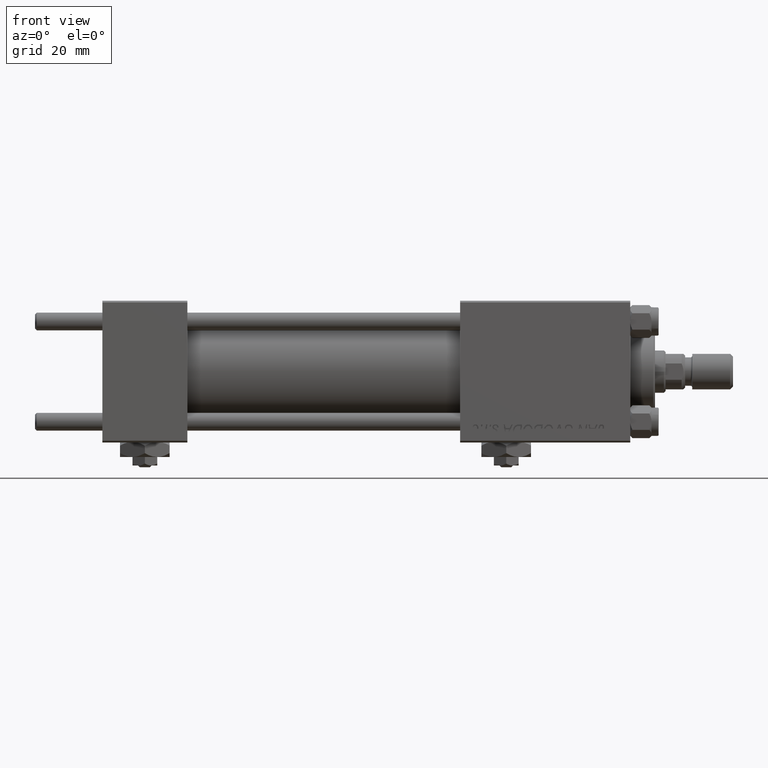
[diagram: clean part render]
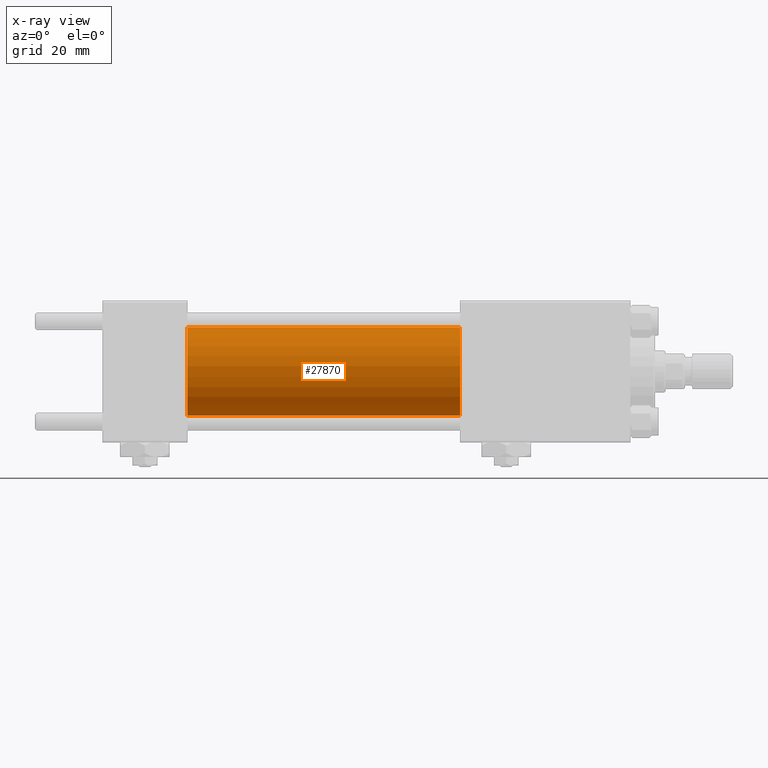
[diagram: x-ray — body ghosted, one internal face saturated and labeled with its STEP entity id]
A machine part, front view, then the same camera in x-ray: the body is ghosted and one INTERNAL B-rep face — a face not visible from any outside direction — is saturated and labeled: STEP entity #27870.
In plain terms, the highlighted cylindrical surface (partial cylindrical patch) has radius 12.5 mm, axis along (-1, -0, -0).
Its self-contained STEP definition (entity closure, byte-faithful):
#2123 = CARTESIAN_POINT ( 'NONE',  ( 24.00000000000000000, 0.000000000000000000, 0.000000000000000000 ) ) ;
#2593 = ORIENTED_EDGE ( 'NONE', *, *, #13413, .F. ) ;
#4241 = ORIENTED_EDGE ( 'NONE', *, *, #17169, .F. ) ;
#4307 = CARTESIAN_POINT ( 'NONE',  ( 101.0000000000000000, 0.000000000000000000, 0.000000000000000000 ) ) ;
#4740 = CARTESIAN_POINT ( 'NONE',  ( 101.0000000000000000, 1.530808498934191127E-15, -12.49999999999999645 ) ) ;
#5392 = FACE_OUTER_BOUND ( 'NONE', #17061, .T. ) ;
#7225 = LINE ( 'NONE', #23343, #23056 ) ;
#8024 = DIRECTION ( 'NONE',  ( 0.000000000000000000, 0.000000000000000000, -1.000000000000000000 ) ) ;
#8532 = AXIS2_PLACEMENT_3D ( 'NONE', #2123, #13760, #22476 ) ;
#9269 = ORIENTED_EDGE ( 'NONE', *, *, #46732, .T. ) ;
#10289 = CARTESIAN_POINT ( 'NONE',  ( 101.0000000000000000, 1.530808498934191127E-15, -12.49999999999999645 ) ) ;
#13413 = EDGE_CURVE ( 'NONE', #36465, #52240, #50782, .T. ) ;
#13760 = DIRECTION ( 'NONE',  ( 1.000000000000000000, 0.000000000000000000, 0.000000000000000000 ) ) ;
#13763 = ORIENTED_EDGE ( 'NONE', *, *, #45160, .T. ) ;
#15523 = VERTEX_POINT ( 'NONE', #49786 ) ;
#17061 = EDGE_LOOP ( 'NONE', ( #9269, #13763, #2593, #4241 ) ) ;
#17169 = EDGE_CURVE ( 'NONE', #15523, #36465, #7225, .T. ) ;
#21462 = CARTESIAN_POINT ( 'NONE',  ( 24.00000000000000000, 0.000000000000000000, 12.49999999999999645 ) ) ;
#22476 = DIRECTION ( 'NONE',  ( 0.000000000000000000, 0.000000000000000000, -1.000000000000000000 ) ) ;
#23056 = VECTOR ( 'NONE', #39486, 1000.000000000000000 ) ;
#23343 = CARTESIAN_POINT ( 'NONE',  ( 101.0000000000000000, 0.000000000000000000, 12.49999999999999645 ) ) ;
#23774 = LINE ( 'NONE', #4740, #45046 ) ;
#27870 = ADVANCED_FACE ( 'NONE', ( #5392 ), #45576, .F. ) ;
#30743 = AXIS2_PLACEMENT_3D ( 'NONE', #4307, #40281, #8024 ) ;
#36465 = VERTEX_POINT ( 'NONE', #21462 ) ;
#37846 = CARTESIAN_POINT ( 'NONE',  ( 24.00000000000000000, 1.530808498934191127E-15, -12.49999999999999645 ) ) ;
#39486 = DIRECTION ( 'NONE',  ( -1.000000000000000000, -0.000000000000000000, -0.000000000000000000 ) ) ;
#40182 = DIRECTION ( 'NONE',  ( -1.000000000000000000, -0.000000000000000000, -0.000000000000000000 ) ) ;
#40281 = DIRECTION ( 'NONE',  ( 1.000000000000000000, 0.000000000000000000, 0.000000000000000000 ) ) ;
#41350 = DIRECTION ( 'NONE',  ( 0.000000000000000000, 0.000000000000000000, 1.000000000000000000 ) ) ;
#45046 = VECTOR ( 'NONE', #40182, 1000.000000000000000 ) ;
#45160 = EDGE_CURVE ( 'NONE', #49940, #52240, #23774, .T. ) ;
#45576 = CYLINDRICAL_SURFACE ( 'NONE', #46953, 12.49999999999999645 ) ;
#45844 = DIRECTION ( 'NONE',  ( -1.000000000000000000, -0.000000000000000000, -0.000000000000000000 ) ) ;
#46732 = EDGE_CURVE ( 'NONE', #15523, #49940, #51847, .T. ) ;
#46953 = AXIS2_PLACEMENT_3D ( 'NONE', #49807, #45844, #41350 ) ;
#49786 = CARTESIAN_POINT ( 'NONE',  ( 101.0000000000000000, 0.000000000000000000, 12.49999999999999645 ) ) ;
#49807 = CARTESIAN_POINT ( 'NONE',  ( 101.0000000000000000, 0.000000000000000000, 0.000000000000000000 ) ) ;
#49940 = VERTEX_POINT ( 'NONE', #10289 ) ;
#50782 = CIRCLE ( 'NONE', #8532, 12.49999999999999645 ) ;
#51847 = CIRCLE ( 'NONE', #30743, 12.49999999999999645 ) ;
#52240 = VERTEX_POINT ( 'NONE', #37846 ) ;